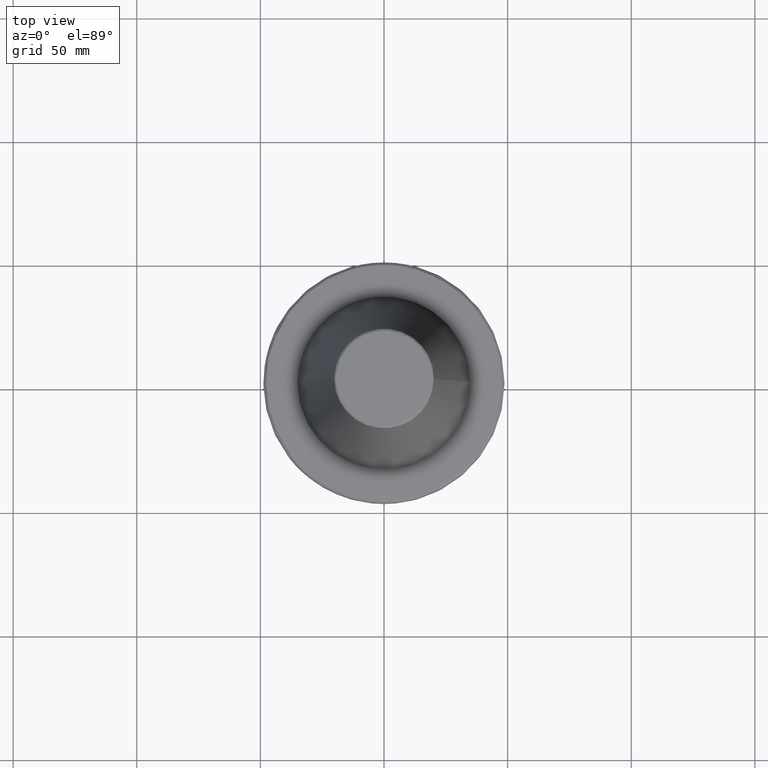
[diagram: clean part render]
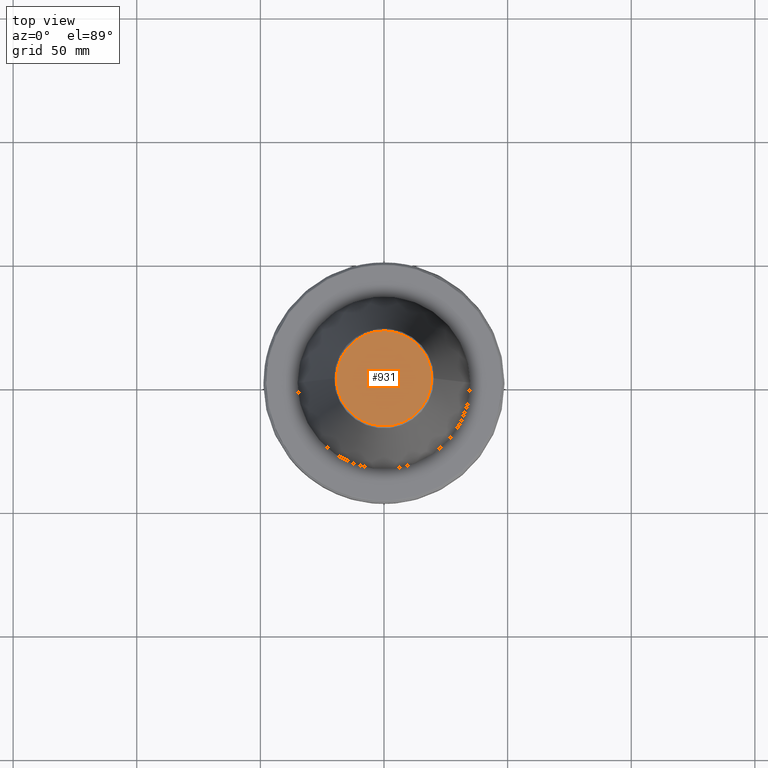
[diagram: same view with one face highlighted and labeled with its STEP entity id]
A machine part, top view. The second image highlights one B-rep face of the part: STEP entity #931.
In plain terms, the highlighted planar face has unit normal (0, 0, 1).
Its self-contained STEP definition (entity closure, byte-faithful):
#11 = CARTESIAN_POINT ( 'NONE',  ( 19.22157500054538900, -38.44315000109077100, 101.7500000000000000 ) ) ;
#66 = CARTESIAN_POINT ( 'NONE',  ( -19.22157500054538900, 2.378200593091449400E-015, 101.7500000000000000 ) ) ;
#80 = CARTESIAN_POINT ( 'NONE',  ( 19.22157500054538900, 0.0000000000000000000, 101.7500000000000000 ) ) ;
#194 = CARTESIAN_POINT ( 'NONE',  ( -19.22157500054538900, 2.378200593091449400E-015, 101.7500000000000000 ) ) ;
#208 = CARTESIAN_POINT ( 'NONE',  ( 19.22157500054538900, 0.0000000000000000000, 101.7500000000000000 ) ) ;
#219 = CARTESIAN_POINT ( 'NONE',  ( 0.0000000000000000000, 0.0000000000000000000, 101.7500000000000000 ) ) ;
#435 = VERTEX_POINT ( 'NONE', #208 ) ;
#518 = ORIENTED_EDGE ( 'NONE', *, *, #2386, .F. ) ;
#573 = EDGE_LOOP ( 'NONE', ( #1366, #518 ) ) ;
#875 = CARTESIAN_POINT ( 'NONE',  ( -19.22157500054538900, 2.378200593091449400E-015, 101.7500000000000000 ) ) ;
#931 = ADVANCED_FACE ( 'NONE', ( #2918 ), #2146, .T. ) ;
#1043 = VERTEX_POINT ( 'NONE', #194 ) ;
#1366 = ORIENTED_EDGE ( 'NONE', *, *, #1456, .F. ) ;
#1456 = EDGE_CURVE ( 'NONE', #1043, #435, #3322, .T. ) ;
#1514 = CARTESIAN_POINT ( 'NONE',  ( -19.22157500054538600, 38.44315000109077100, 101.7500000000000000 ) ) ;
#1716 = CARTESIAN_POINT ( 'NONE',  ( 19.22157500054538900, 0.0000000000000000000, 101.7500000000000000 ) ) ;
#1769 = CARTESIAN_POINT ( 'NONE',  ( 19.22157500054538900, 38.44315000109077100, 101.7500000000000000 ) ) ;
#1845 =( BOUNDED_CURVE ( )  B_SPLINE_CURVE ( 3, ( #1716, #11, #2478, #875 ),
 .UNSPECIFIED., .F., .F. ) 
 B_SPLINE_CURVE_WITH_KNOTS ( ( 4, 4 ),
 ( 0.0000000000000000000, 1.000000000000000000 ),
 .UNSPECIFIED. ) 
 CURVE ( )  GEOMETRIC_REPRESENTATION_ITEM ( )  RATIONAL_B_SPLINE_CURVE ( ( 1.000000000000000000, 0.3333333333333333700, 0.3333333333333333700, 1.000000000000000000 ) ) 
 REPRESENTATION_ITEM ( '' )  );
#2146 = PLANE ( 'NONE',  #2988 ) ;
#2386 = EDGE_CURVE ( 'NONE', #435, #1043, #1845, .T. ) ;
#2478 = CARTESIAN_POINT ( 'NONE',  ( -19.22157500054538900, -38.44315000109077100, 101.7500000000000000 ) ) ;
#2918 = FACE_OUTER_BOUND ( 'NONE', #573, .T. ) ;
#2988 = AXIS2_PLACEMENT_3D ( 'NONE', #219, #3368, #3378 ) ;
#3322 =( BOUNDED_CURVE ( )  B_SPLINE_CURVE ( 3, ( #66, #1514, #1769, #80 ),
 .UNSPECIFIED., .F., .F. ) 
 B_SPLINE_CURVE_WITH_KNOTS ( ( 4, 4 ),
 ( 0.0000000000000000000, 1.000000000000000000 ),
 .UNSPECIFIED. ) 
 CURVE ( )  GEOMETRIC_REPRESENTATION_ITEM ( )  RATIONAL_B_SPLINE_CURVE ( ( 1.000000000000000000, 0.3333333333333333700, 0.3333333333333333700, 1.000000000000000000 ) ) 
 REPRESENTATION_ITEM ( '' )  );
#3368 = DIRECTION ( 'NONE',  ( 0.0000000000000000000, 0.0000000000000000000, 1.000000000000000000 ) ) ;
#3378 = DIRECTION ( 'NONE',  ( 1.000000000000000000, 0.0000000000000000000, -0.0000000000000000000 ) ) ;